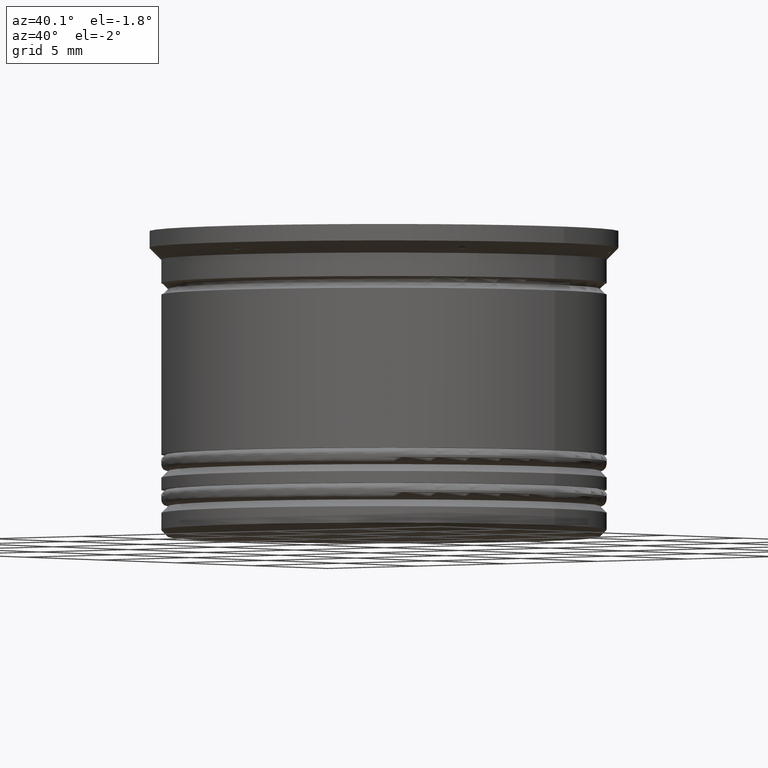
[diagram: clean part render]
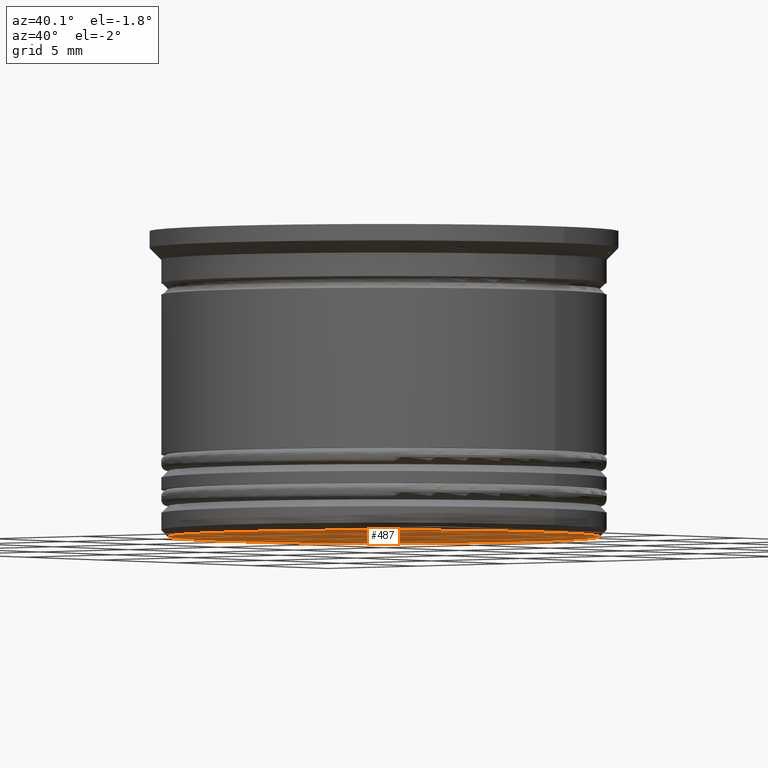
[diagram: same view with one face highlighted and labeled with its STEP entity id]
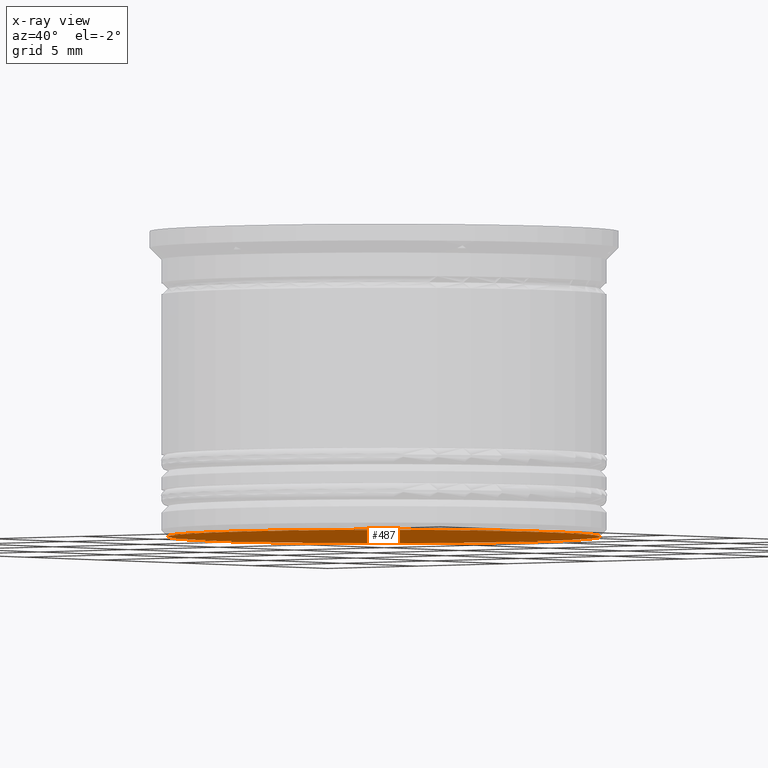
[diagram: x-ray of the same camera — body ghosted, the highlighted face saturated]
A machine part, auxiliary view. The second image highlights one B-rep face of the part: STEP entity #487.
The next image is the same camera in x-ray: the body ghosted, the highlighted face saturated — about 0% of this face is hidden behind the body in this view.
In plain terms, the highlighted planar face has unit normal (0, 0, -1).
Its self-contained STEP definition (entity closure, byte-faithful):
#113 = CIRCLE ( 'NONE', #1967, 9.200000000000006395 ) ;
#205 = DIRECTION ( 'NONE',  ( -1.000000000000000000, 0.000000000000000000, 0.000000000000000000 ) ) ;
#211 = DIRECTION ( 'NONE',  ( 0.000000000000000000, 0.000000000000000000, -1.000000000000000000 ) ) ;
#318 = EDGE_CURVE ( 'NONE', #722, #1736, #980, .T. ) ;
#357 = AXIS2_PLACEMENT_3D ( 'NONE', #1416, #576, #413 ) ;
#413 = DIRECTION ( 'NONE',  ( -1.000000000000000000, 0.000000000000000000, -0.000000000000000000 ) ) ;
#487 = ADVANCED_FACE ( 'NONE', ( #932 ), #921, .T. ) ;
#576 = DIRECTION ( 'NONE',  ( 0.000000000000000000, 0.000000000000000000, -1.000000000000000000 ) ) ;
#585 = EDGE_CURVE ( 'NONE', #1736, #722, #113, .T. ) ;
#722 = VERTEX_POINT ( 'NONE', #936 ) ;
#809 = CARTESIAN_POINT ( 'NONE',  ( 9.200000000000006395, 0.000000000000000000, -13.00000000000000178 ) ) ;
#848 = CARTESIAN_POINT ( 'NONE',  ( 0.000000000000000000, 0.000000000000000000, -13.00000000000000178 ) ) ;
#921 = PLANE ( 'NONE',  #357 ) ;
#932 = FACE_OUTER_BOUND ( 'NONE', #2090, .T. ) ;
#936 = CARTESIAN_POINT ( 'NONE',  ( -9.200000000000006395, 1.145044757202775844E-15, -13.00000000000000178 ) ) ;
#980 = CIRCLE ( 'NONE', #1891, 9.200000000000006395 ) ;
#1064 = ORIENTED_EDGE ( 'NONE', *, *, #585, .T. ) ;
#1142 = ORIENTED_EDGE ( 'NONE', *, *, #318, .T. ) ;
#1416 = CARTESIAN_POINT ( 'NONE',  ( 0.000000000000000000, 9.500000000000001776, -13.00000000000000178 ) ) ;
#1582 = DIRECTION ( 'NONE',  ( 0.000000000000000000, 0.000000000000000000, -1.000000000000000000 ) ) ;
#1700 = CARTESIAN_POINT ( 'NONE',  ( 0.000000000000000000, 0.000000000000000000, -13.00000000000000178 ) ) ;
#1736 = VERTEX_POINT ( 'NONE', #809 ) ;
#1891 = AXIS2_PLACEMENT_3D ( 'NONE', #848, #211, #205 ) ;
#1967 = AXIS2_PLACEMENT_3D ( 'NONE', #1700, #1582, #2063 ) ;
#2063 = DIRECTION ( 'NONE',  ( -1.000000000000000000, 0.000000000000000000, 0.000000000000000000 ) ) ;
#2090 = EDGE_LOOP ( 'NONE', ( #1064, #1142 ) ) ;